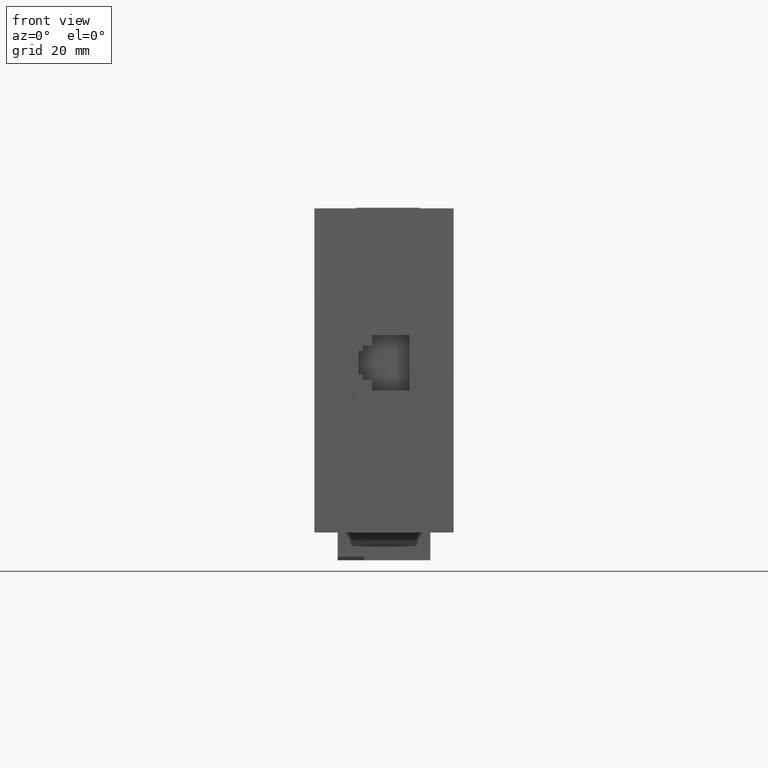
[diagram: clean part render]
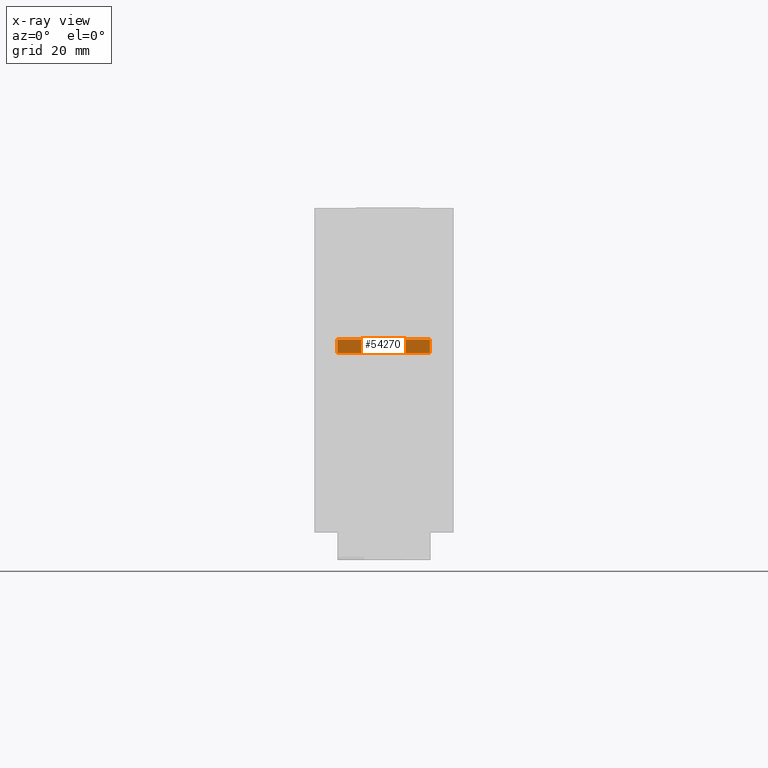
[diagram: x-ray — body ghosted, one internal face saturated and labeled with its STEP entity id]
A machine part, front view, then the same camera in x-ray: the body is ghosted and one INTERNAL B-rep face — a face not visible from any outside direction — is saturated and labeled: STEP entity #54270.
In plain terms, the highlighted planar face has unit normal (0, 1, 0).
Its self-contained STEP definition (entity closure, byte-faithful):
#51510=CARTESIAN_POINT('',(-22.1173015753009,58.3578968167969,
-31.109999993001));
#51520=VERTEX_POINT('',#51510);
#51600=CARTESIAN_POINT('',(-42.1173015753009,58.3578968167968,
-31.109999993001));
#51610=VERTEX_POINT('',#51600);
#51640=CARTESIAN_POINT('',(-32.3532757178843,58.3578968167968,
-31.109999993001));
#51650=DIRECTION('',(-1.,1.56125112837911E-17,1.11022302462516E-16));
#51660=VECTOR('',#51650,1.);
#51670=LINE('',#51640,#51660);
#51680=EDGE_CURVE('',#51520,#51610,#51670,.T.);
#52130=CARTESIAN_POINT('',(-22.1173015753009,58.3578968167968,
-31.110002993001));
#52140=DIRECTION('',(1.11022302462516E-16,-6.6822090395713E-16,1.));
#52150=VECTOR('',#52140,1.);
#52160=LINE('',#52130,#52150);
#52170=CARTESIAN_POINT('',(-22.1173015753009,58.3578968167968,
-28.209999993));
#52180=VERTEX_POINT('',#52170);
#52190=EDGE_CURVE('',#51520,#52180,#52160,.T.);
#54040=CARTESIAN_POINT('',(-22.1173015753009,58.3578968167968,
-31.109999993001));
#54050=DIRECTION('',(1.56125112837912E-17,1.,6.6822090395713E-16));
#54060=DIRECTION('',(-1.11022302462516E-16,6.6822090395713E-16,-1.));
#54070=AXIS2_PLACEMENT_3D('',#54040,#54050,#54060);
#54080=PLANE('',#54070);
#54090=ORIENTED_EDGE('',*,*,#52190,.T.);
#54100=ORIENTED_EDGE('',*,*,#51680,.F.);
#54110=CARTESIAN_POINT('',(-42.1173015753009,58.3578968167969,
-35.966355676925));
#54120=DIRECTION('',(-1.11022302462516E-16,6.6822090395713E-16,-1.));
#54130=VECTOR('',#54120,1.);
#54140=LINE('',#54110,#54130);
#54150=CARTESIAN_POINT('',(-42.1173015753009,58.3578968167968,
-28.209999993));
#54160=VERTEX_POINT('',#54150);
#54170=EDGE_CURVE('',#54160,#51610,#54140,.T.);
#54180=ORIENTED_EDGE('',*,*,#54170,.T.);
#54190=CARTESIAN_POINT('',(-32.3532757178843,58.3578968167968,
-28.209999993));
#54200=DIRECTION('',(-1.,1.56125112837911E-17,1.11022302462516E-16));
#54210=VECTOR('',#54200,1.);
#54220=LINE('',#54190,#54210);
#54230=EDGE_CURVE('',#52180,#54160,#54220,.T.);
#54240=ORIENTED_EDGE('',*,*,#54230,.T.);
#54250=EDGE_LOOP('',(#54240,#54180,#54100,#54090));
#54260=FACE_OUTER_BOUND('',#54250,.T.);
#54270=ADVANCED_FACE('',(#54260),#54080,.F.);